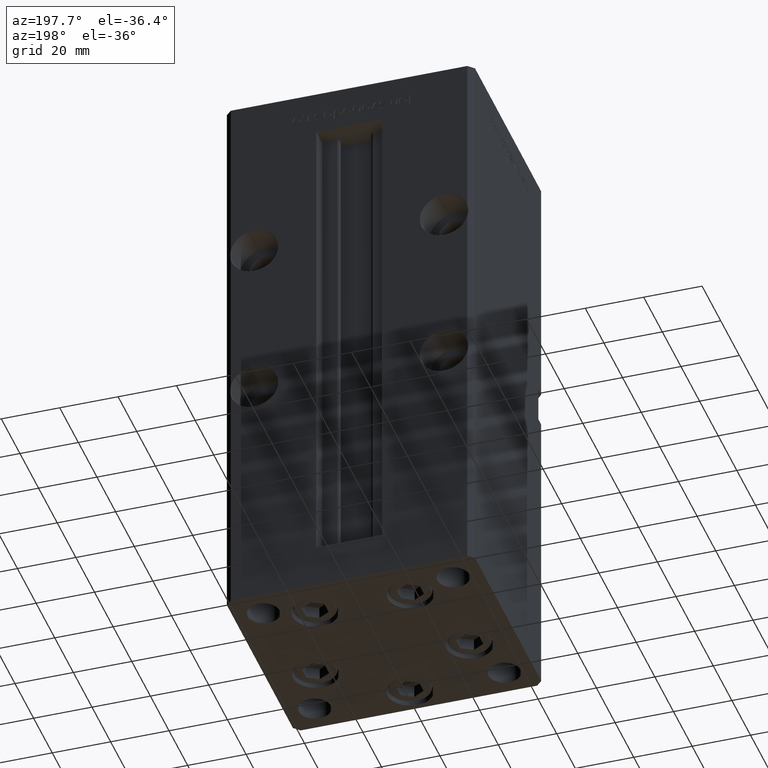
[diagram: clean part render]
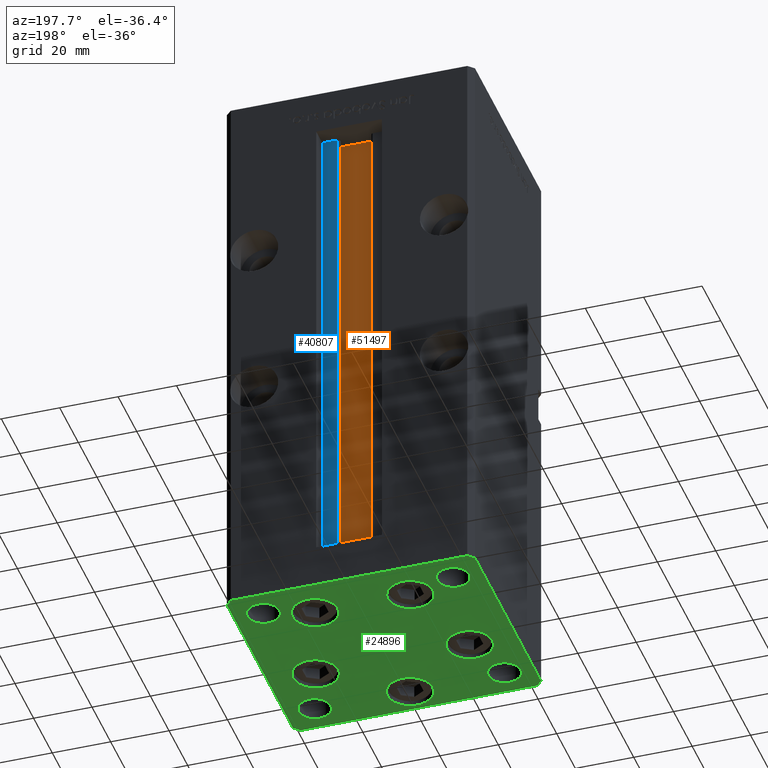
[diagram: same view with three faces highlighted in distinct colors, each labeled with its STEP entity id]
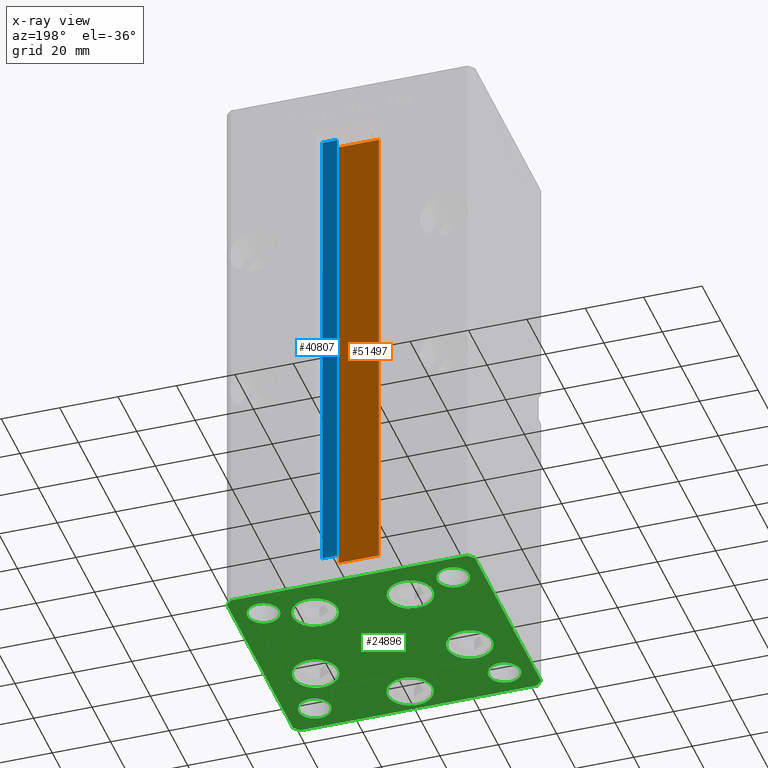
[diagram: x-ray of the same camera — body ghosted, the three highlighted faces saturated]
A machine part, auxiliary view with three faces highlighted in distinct colors.
The next image is the same camera in x-ray (body ghosted, the three faces saturated) — at least one of them is partly hidden behind the body in this view.
Their STEP definitions:

[orange] entity #51497 — the highlighted planar face has unit normal (0, -1, 0).
#182 = CARTESIAN_POINT ( 'NONE',  ( 6.876153656360465938, 26.99999999999986855, 0.000000000000000000 ) ) ;
#631 = CARTESIAN_POINT ( 'NONE',  ( 0.000000000000000000, 26.99999999999986855, 168.5000000000000000 ) ) ;
#884 = ORIENTED_EDGE ( 'NONE', *, *, #7718, .F. ) ;
#2461 = ORIENTED_EDGE ( 'NONE', *, *, #17048, .F. ) ;
#4749 = PLANE ( 'NONE',  #14520 ) ;
#5506 = VERTEX_POINT ( 'NONE', #25019 ) ;
#7424 = CARTESIAN_POINT ( 'NONE',  ( -6.876153656360465938, 26.99999999999986855, 168.5000000000000000 ) ) ;
#7718 = EDGE_CURVE ( 'NONE', #5506, #31413, #7901, .T. ) ;
#7901 = LINE ( 'NONE', #631, #20656 ) ;
#11794 = DIRECTION ( 'NONE',  ( 1.000000000000000000, -0.000000000000000000, -0.000000000000000000 ) ) ;
#14295 = VERTEX_POINT ( 'NONE', #39695 ) ;
#14520 = AXIS2_PLACEMENT_3D ( 'NONE', #182, #49946, #16868 ) ;
#16868 = DIRECTION ( 'NONE',  ( 0.000000000000000000, 0.000000000000000000, -1.000000000000000000 ) ) ;
#17048 = EDGE_CURVE ( 'NONE', #14295, #17902, #53203, .T. ) ;
#17902 = VERTEX_POINT ( 'NONE', #42909 ) ;
#18743 = EDGE_LOOP ( 'NONE', ( #38822, #2461, #27637, #884 ) ) ;
#19698 = LINE ( 'NONE', #52497, #20138 ) ;
#20138 = VECTOR ( 'NONE', #32029, 1000.000000000000000 ) ;
#20656 = VECTOR ( 'NONE', #40701, 1000.000000000000000 ) ;
#23348 = CARTESIAN_POINT ( 'NONE',  ( 6.876153656360465938, 26.99999999999986855, 0.000000000000000000 ) ) ;
#24482 = EDGE_CURVE ( 'NONE', #17902, #5506, #19698, .T. ) ;
#25019 = CARTESIAN_POINT ( 'NONE',  ( 6.876153656360465938, 26.99999999999986855, 168.5000000000000000 ) ) ;
#25367 = LINE ( 'NONE', #37458, #26193 ) ;
#26193 = VECTOR ( 'NONE', #33683, 1000.000000000000000 ) ;
#26906 = VECTOR ( 'NONE', #11794, 1000.000000000000000 ) ;
#27637 = ORIENTED_EDGE ( 'NONE', *, *, #36560, .T. ) ;
#31413 = VERTEX_POINT ( 'NONE', #7424 ) ;
#32029 = DIRECTION ( 'NONE',  ( -0.000000000000000000, -0.000000000000000000, 1.000000000000000000 ) ) ;
#33683 = DIRECTION ( 'NONE',  ( -0.000000000000000000, -0.000000000000000000, 1.000000000000000000 ) ) ;
#36560 = EDGE_CURVE ( 'NONE', #14295, #31413, #25367, .T. ) ;
#37458 = CARTESIAN_POINT ( 'NONE',  ( -6.876153656360465938, 26.99999999999986855, 0.000000000000000000 ) ) ;
#38073 = FACE_OUTER_BOUND ( 'NONE', #18743, .T. ) ;
#38822 = ORIENTED_EDGE ( 'NONE', *, *, #24482, .F. ) ;
#39695 = CARTESIAN_POINT ( 'NONE',  ( -6.876153656360465938, 26.99999999999986855, 0.000000000000000000 ) ) ;
#40701 = DIRECTION ( 'NONE',  ( -1.000000000000000000, 0.000000000000000000, 0.000000000000000000 ) ) ;
#42909 = CARTESIAN_POINT ( 'NONE',  ( 6.876153656360465938, 26.99999999999986855, 0.000000000000000000 ) ) ;
#49946 = DIRECTION ( 'NONE',  ( 0.000000000000000000, -1.000000000000000000, -0.000000000000000000 ) ) ;
#51497 = ADVANCED_FACE ( 'NONE', ( #38073 ), #4749, .F. ) ;
#52497 = CARTESIAN_POINT ( 'NONE',  ( 6.876153656360465938, 26.99999999999986855, 0.000000000000000000 ) ) ;
#53203 = LINE ( 'NONE', #23348, #26906 ) ;

[blue] entity #40807 — the highlighted planar face has unit normal (0, -1, 0).
#917 = CARTESIAN_POINT ( 'NONE',  ( 0.000000000000000000, 31.00000000000000000, 168.5000000000000000 ) ) ;
#1262 = CARTESIAN_POINT ( 'NONE',  ( 6.183333333333997928, 31.00000000000000000, 168.5000000000000000 ) ) ;
#3493 = DIRECTION ( 'NONE',  ( 1.000000000000000000, 0.000000000000000000, 0.000000000000000000 ) ) ;
#9618 = EDGE_CURVE ( 'NONE', #24494, #18319, #49876, .T. ) ;
#11840 = LINE ( 'NONE', #44624, #32237 ) ;
#13024 = DIRECTION ( 'NONE',  ( -1.000000000000000000, 0.000000000000000000, 0.000000000000000000 ) ) ;
#13321 = EDGE_LOOP ( 'NONE', ( #20841, #37438, #48474, #34015 ) ) ;
#14618 = VERTEX_POINT ( 'NONE', #36859 ) ;
#15853 = LINE ( 'NONE', #52968, #31324 ) ;
#16204 = PLANE ( 'NONE',  #22055 ) ;
#16666 = CARTESIAN_POINT ( 'NONE',  ( 11.24999999999999822, 31.00000000000000000, 0.000000000000000000 ) ) ;
#18319 = VERTEX_POINT ( 'NONE', #1262 ) ;
#19711 = DIRECTION ( 'NONE',  ( 0.000000000000000000, -0.000000000000000000, -1.000000000000000000 ) ) ;
#20841 = ORIENTED_EDGE ( 'NONE', *, *, #25595, .F. ) ;
#22055 = AXIS2_PLACEMENT_3D ( 'NONE', #23722, #49012, #19711 ) ;
#23605 = VECTOR ( 'NONE', #48947, 1000.000000000000000 ) ;
#23722 = CARTESIAN_POINT ( 'NONE',  ( 6.183333333333997928, 31.00000000000000000, 0.000000000000000000 ) ) ;
#24494 = VERTEX_POINT ( 'NONE', #48463 ) ;
#25595 = EDGE_CURVE ( 'NONE', #14618, #24494, #48680, .T. ) ;
#27211 = EDGE_CURVE ( 'NONE', #45643, #14618, #11840, .T. ) ;
#29207 = CARTESIAN_POINT ( 'NONE',  ( 6.183333333333997928, 31.00000000000000000, 0.000000000000000000 ) ) ;
#31324 = VECTOR ( 'NONE', #48668, 1000.000000000000000 ) ;
#32237 = VECTOR ( 'NONE', #3493, 1000.000000000000000 ) ;
#34015 = ORIENTED_EDGE ( 'NONE', *, *, #9618, .F. ) ;
#35113 = EDGE_CURVE ( 'NONE', #45643, #18319, #15853, .T. ) ;
#36859 = CARTESIAN_POINT ( 'NONE',  ( 11.24999999999999822, 31.00000000000000000, 0.000000000000000000 ) ) ;
#37438 = ORIENTED_EDGE ( 'NONE', *, *, #27211, .F. ) ;
#40807 = ADVANCED_FACE ( 'NONE', ( #48207 ), #16204, .F. ) ;
#41268 = VECTOR ( 'NONE', #13024, 1000.000000000000000 ) ;
#44624 = CARTESIAN_POINT ( 'NONE',  ( 6.183333333333997928, 31.00000000000000000, 0.000000000000000000 ) ) ;
#45643 = VERTEX_POINT ( 'NONE', #29207 ) ;
#48207 = FACE_OUTER_BOUND ( 'NONE', #13321, .T. ) ;
#48463 = CARTESIAN_POINT ( 'NONE',  ( 11.24999999999999822, 31.00000000000000000, 168.5000000000000000 ) ) ;
#48474 = ORIENTED_EDGE ( 'NONE', *, *, #35113, .T. ) ;
#48668 = DIRECTION ( 'NONE',  ( -0.000000000000000000, -0.000000000000000000, 1.000000000000000000 ) ) ;
#48680 = LINE ( 'NONE', #16666, #23605 ) ;
#48947 = DIRECTION ( 'NONE',  ( -0.000000000000000000, -0.000000000000000000, 1.000000000000000000 ) ) ;
#49012 = DIRECTION ( 'NONE',  ( 0.000000000000000000, -1.000000000000000000, 0.000000000000000000 ) ) ;
#49876 = LINE ( 'NONE', #917, #41268 ) ;
#52968 = CARTESIAN_POINT ( 'NONE',  ( 6.183333333333997928, 31.00000000000000000, 0.000000000000000000 ) ) ;

[green] entity #24896 — the highlighted planar face has unit normal (0, 0, -1).
#7 = CARTESIAN_POINT ( 'NONE',  ( -26.39865316429776954, -9.333333333333337478, 0.000000000000000000 ) ) ;
#224 = DIRECTION ( 'NONE',  ( 0.000000000000000000, -0.000000000000000000, -1.000000000000000000 ) ) ;
#317 = AXIS2_PLACEMENT_3D ( 'NONE', #47971, #48511, #2782 ) ;
#513 = AXIS2_PLACEMENT_3D ( 'NONE', #23710, #24982, #27739 ) ;
#876 = VECTOR ( 'NONE', #45246, 1000.000000000000000 ) ;
#1205 = CIRCLE ( 'NONE', #47615, 7.750000000000000000 ) ;
#1254 = EDGE_LOOP ( 'NONE', ( #21331, #5039 ) ) ;
#1407 = CIRCLE ( 'NONE', #49474, 7.750000000000000000 ) ;
#1438 = DIRECTION ( 'NONE',  ( 1.000000000000000000, 0.000000000000000000, 0.000000000000000000 ) ) ;
#1537 = AXIS2_PLACEMENT_3D ( 'NONE', #31857, #50538, #22537 ) ;
#1775 = EDGE_LOOP ( 'NONE', ( #51240, #50155 ) ) ;
#2020 = DIRECTION ( 'NONE',  ( 1.000000000000000000, 0.000000000000000000, 0.000000000000000000 ) ) ;
#2297 = FACE_BOUND ( 'NONE', #19265, .T. ) ;
#2318 = DIRECTION ( 'NONE',  ( -0.000000000000000000, 0.000000000000000000, 1.000000000000000000 ) ) ;
#2782 = DIRECTION ( 'NONE',  ( 1.000000000000000000, 0.000000000000000000, 0.000000000000000000 ) ) ;
#2970 = DIRECTION ( 'NONE',  ( 0.000000000000000000, -0.000000000000000000, -1.000000000000000000 ) ) ;
#3086 = DIRECTION ( 'NONE',  ( -0.000000000000000000, 0.000000000000000000, 1.000000000000000000 ) ) ;
#3422 = CARTESIAN_POINT ( 'NONE',  ( 42.49999999999992895, 35.50000000000000000, 0.000000000000000000 ) ) ;
#3723 = EDGE_CURVE ( 'NONE', #51834, #33833, #22366, .T. ) ;
#3775 = DIRECTION ( 'NONE',  ( 0.000000000000000000, -0.000000000000000000, -1.000000000000000000 ) ) ;
#3984 = EDGE_CURVE ( 'NONE', #23499, #52232, #11385, .T. ) ;
#4340 = LINE ( 'NONE', #25312, #51108 ) ;
#4469 = CARTESIAN_POINT ( 'NONE',  ( -27.00000000000000355, 27.50000000000000355, 0.000000000000000000 ) ) ;
#4714 = VERTEX_POINT ( 'NONE', #16163 ) ;
#5039 = ORIENTED_EDGE ( 'NONE', *, *, #23215, .T. ) ;
#5268 = CARTESIAN_POINT ( 'NONE',  ( 16.32291334290542295, 22.75000000000000000, 0.000000000000000000 ) ) ;
#5696 = ORIENTED_EDGE ( 'NONE', *, *, #8816, .F. ) ;
#5792 = CARTESIAN_POINT ( 'NONE',  ( -40.50000000000000711, 37.49999999999997868, 0.000000000000000000 ) ) ;
#5814 = CARTESIAN_POINT ( 'NONE',  ( -32.50000000000000000, 27.50000000000000355, 0.000000000000000000 ) ) ;
#5827 = CIRCLE ( 'NONE', #38465, 5.499999999999998224 ) ;
#6052 = CARTESIAN_POINT ( 'NONE',  ( 26.39865316429776954, -9.333333333333330373, 0.000000000000000000 ) ) ;
#6750 = DIRECTION ( 'NONE',  ( 0.000000000000000000, -0.000000000000000000, -1.000000000000000000 ) ) ;
#6810 = CARTESIAN_POINT ( 'NONE',  ( 38.00000000000000000, -27.49999999999999645, 0.000000000000000000 ) ) ;
#7184 = CARTESIAN_POINT ( 'NONE',  ( 40.50000000000000000, -37.50000000000000711, 0.000000000000000000 ) ) ;
#7387 = CARTESIAN_POINT ( 'NONE',  ( 0.000000000000000000, 0.000000000000000000, 0.000000000000000000 ) ) ;
#7514 = CIRCLE ( 'NONE', #32412, 5.499999999999998224 ) ;
#7777 = LINE ( 'NONE', #24181, #16726 ) ;
#7902 = ORIENTED_EDGE ( 'NONE', *, *, #10834, .T. ) ;
#8139 = CARTESIAN_POINT ( 'NONE',  ( 42.50000000000000711, -35.50000000000000000, 0.000000000000000000 ) ) ;
#8555 = ORIENTED_EDGE ( 'NONE', *, *, #3984, .T. ) ;
#8663 = DIRECTION ( 'NONE',  ( 1.000000000000000000, 0.000000000000000000, 0.000000000000000000 ) ) ;
#8816 = EDGE_CURVE ( 'NONE', #25655, #4714, #42963, .T. ) ;
#8995 = ORIENTED_EDGE ( 'NONE', *, *, #50735, .T. ) ;
#9011 = CIRCLE ( 'NONE', #19299, 5.499999999999998224 ) ;
#9069 = CARTESIAN_POINT ( 'NONE',  ( -38.00000000000000000, -27.49999999999999645, 0.000000000000000000 ) ) ;
#9249 = DIRECTION ( 'NONE',  ( -0.000000000000000000, 0.000000000000000000, 1.000000000000000000 ) ) ;
#9323 = CARTESIAN_POINT ( 'NONE',  ( 40.49999999999991473, 37.50000000000000711, 0.000000000000000000 ) ) ;
#9716 = DIRECTION ( 'NONE',  ( 1.000000000000000000, 0.000000000000000000, 0.000000000000000000 ) ) ;
#10373 = DIRECTION ( 'NONE',  ( 1.000000000000000000, 0.000000000000000000, 0.000000000000000000 ) ) ;
#10382 = FACE_BOUND ( 'NONE', #1254, .T. ) ;
#10538 = CARTESIAN_POINT ( 'NONE',  ( -26.39865316429776954, -9.333333333333337478, 0.000000000000000000 ) ) ;
#10834 = EDGE_CURVE ( 'NONE', #17963, #19422, #34154, .T. ) ;
#11073 = EDGE_CURVE ( 'NONE', #24691, #33400, #48922, .T. ) ;
#11385 = LINE ( 'NONE', #8139, #876 ) ;
#11499 = LINE ( 'NONE', #3422, #35623 ) ;
#11596 = CARTESIAN_POINT ( 'NONE',  ( -40.50000000000000711, 37.49999999999997868, 0.000000000000000000 ) ) ;
#11924 = ORIENTED_EDGE ( 'NONE', *, *, #35646, .T. ) ;
#13612 = EDGE_LOOP ( 'NONE', ( #39667, #29142 ) ) ;
#13750 = CARTESIAN_POINT ( 'NONE',  ( -32.50000000000000000, 27.50000000000000355, 0.000000000000000000 ) ) ;
#14110 = CIRCLE ( 'NONE', #47572, 7.750000000000000000 ) ;
#14149 = FACE_BOUND ( 'NONE', #1775, .T. ) ;
#14163 = DIRECTION ( 'NONE',  ( 0.000000000000000000, -0.000000000000000000, -1.000000000000000000 ) ) ;
#14365 = ORIENTED_EDGE ( 'NONE', *, *, #26114, .T. ) ;
#14386 = ORIENTED_EDGE ( 'NONE', *, *, #11073, .T. ) ;
#14410 = FACE_BOUND ( 'NONE', #37553, .T. ) ;
#14728 = EDGE_LOOP ( 'NONE', ( #5696, #48435 ) ) ;
#15152 = VERTEX_POINT ( 'NONE', #16848 ) ;
#15351 = VERTEX_POINT ( 'NONE', #52587 ) ;
#15460 = PLANE ( 'NONE',  #23561 ) ;
#15727 = DIRECTION ( 'NONE',  ( 1.000000000000000000, 0.000000000000000000, 0.000000000000000000 ) ) ;
#15905 = CIRCLE ( 'NONE', #47648, 7.750000000000003553 ) ;
#16120 = CARTESIAN_POINT ( 'NONE',  ( -16.32291334290543006, 22.74999999999999645, 0.000000000000000000 ) ) ;
#16163 = CARTESIAN_POINT ( 'NONE',  ( 27.00000000000000355, 27.49999999999999645, 0.000000000000000000 ) ) ;
#16293 = CARTESIAN_POINT ( 'NONE',  ( -40.49999999999999289, -37.50000000000002132, 0.000000000000000000 ) ) ;
#16421 = EDGE_CURVE ( 'NONE', #45654, #48570, #44920, .T. ) ;
#16684 = EDGE_CURVE ( 'NONE', #46196, #15152, #23457, .T. ) ;
#16726 = VECTOR ( 'NONE', #40574, 1000.000000000000000 ) ;
#16803 = CARTESIAN_POINT ( 'NONE',  ( 8.572913342905422951, 22.75000000000000000, 0.000000000000000000 ) ) ;
#16848 = CARTESIAN_POINT ( 'NONE',  ( -18.64865316429776954, -9.333333333333335702, 0.000000000000000000 ) ) ;
#16943 = CARTESIAN_POINT ( 'NONE',  ( -42.50000000000000000, -35.50000000000000711, 0.000000000000000000 ) ) ;
#17532 = CIRCLE ( 'NONE', #24383, 7.750000000000000000 ) ;
#17623 = EDGE_CURVE ( 'NONE', #4714, #25655, #47536, .T. ) ;
#17652 = VERTEX_POINT ( 'NONE', #27250 ) ;
#17663 = DIRECTION ( 'NONE',  ( 1.000000000000000000, 0.000000000000000000, 0.000000000000000000 ) ) ;
#17735 = CARTESIAN_POINT ( 'NONE',  ( 38.00000000000000000, 27.49999999999999645, 0.000000000000000000 ) ) ;
#17855 = CARTESIAN_POINT ( 'NONE',  ( 32.50000000000000000, 27.49999999999999645, 0.000000000000000000 ) ) ;
#17963 = VERTEX_POINT ( 'NONE', #16943 ) ;
#18204 = CARTESIAN_POINT ( 'NONE',  ( 16.32291334290542295, 22.75000000000000000, 0.000000000000000000 ) ) ;
#18466 = VERTEX_POINT ( 'NONE', #6810 ) ;
#18620 = EDGE_CURVE ( 'NONE', #17652, #50471, #1205, .T. ) ;
#18717 = FACE_BOUND ( 'NONE', #14728, .T. ) ;
#18851 = LINE ( 'NONE', #43823, #22265 ) ;
#18897 = EDGE_CURVE ( 'NONE', #48011, #39681, #14110, .T. ) ;
#19265 = EDGE_LOOP ( 'NONE', ( #21121, #8995 ) ) ;
#19299 = AXIS2_PLACEMENT_3D ( 'NONE', #46144, #25695, #10373 ) ;
#19422 = VERTEX_POINT ( 'NONE', #16293 ) ;
#19673 = LINE ( 'NONE', #11596, #20103 ) ;
#19685 = ORIENTED_EDGE ( 'NONE', *, *, #48487, .T. ) ;
#20103 = VECTOR ( 'NONE', #44384, 1000.000000000000000 ) ;
#20116 = EDGE_LOOP ( 'NONE', ( #7902, #46394, #14365, #8555, #34177, #14386, #42317, #32735 ) ) ;
#20475 = DIRECTION ( 'NONE',  ( 0.000000000000000000, -0.000000000000000000, -1.000000000000000000 ) ) ;
#21121 = ORIENTED_EDGE ( 'NONE', *, *, #18897, .T. ) ;
#21331 = ORIENTED_EDGE ( 'NONE', *, *, #16684, .T. ) ;
#21687 = DIRECTION ( 'NONE',  ( 0.000000000000000000, -0.000000000000000000, -1.000000000000000000 ) ) ;
#22105 = DIRECTION ( 'NONE',  ( 0.000000000000000000, -0.000000000000000000, -1.000000000000000000 ) ) ;
#22257 = VERTEX_POINT ( 'NONE', #31196 ) ;
#22265 = VECTOR ( 'NONE', #51644, 1000.000000000000000 ) ;
#22366 = CIRCLE ( 'NONE', #52425, 7.750000000000003553 ) ;
#22537 = DIRECTION ( 'NONE',  ( 1.000000000000000000, 0.000000000000000000, 0.000000000000000000 ) ) ;
#23196 = EDGE_CURVE ( 'NONE', #33400, #32704, #19673, .T. ) ;
#23215 = EDGE_CURVE ( 'NONE', #15152, #46196, #17532, .T. ) ;
#23308 = EDGE_LOOP ( 'NONE', ( #47636, #38818 ) ) ;
#23457 = CIRCLE ( 'NONE', #42345, 7.750000000000000000 ) ;
#23499 = VERTEX_POINT ( 'NONE', #46009 ) ;
#23561 = AXIS2_PLACEMENT_3D ( 'NONE', #7387, #3086, #15727 ) ;
#23573 = CIRCLE ( 'NONE', #27028, 7.750000000000000000 ) ;
#23692 = CIRCLE ( 'NONE', #513, 5.499999999999998224 ) ;
#23710 = CARTESIAN_POINT ( 'NONE',  ( -32.50000000000000000, -27.49999999999999645, 0.000000000000000000 ) ) ;
#23894 = ORIENTED_EDGE ( 'NONE', *, *, #26374, .T. ) ;
#24181 = CARTESIAN_POINT ( 'NONE',  ( -42.50000000000000711, 35.49999999999997158, 0.000000000000000000 ) ) ;
#24383 = AXIS2_PLACEMENT_3D ( 'NONE', #10538, #6750, #31733 ) ;
#24657 = VERTEX_POINT ( 'NONE', #7184 ) ;
#24691 = VERTEX_POINT ( 'NONE', #9323 ) ;
#24728 = CIRCLE ( 'NONE', #1537, 7.750000000000000000 ) ;
#24896 = ADVANCED_FACE ( 'NONE', ( #14410, #31049, #30269, #2297, #10382, #18717, #47475, #14149, #34303, #46951 ), #15460, .T. ) ;
#24982 = DIRECTION ( 'NONE',  ( 0.000000000000000000, -0.000000000000000000, -1.000000000000000000 ) ) ;
#25312 = CARTESIAN_POINT ( 'NONE',  ( 40.50000000000000000, -37.50000000000000711, 0.000000000000000000 ) ) ;
#25655 = VERTEX_POINT ( 'NONE', #17735 ) ;
#25695 = DIRECTION ( 'NONE',  ( 0.000000000000000000, -0.000000000000000000, -1.000000000000000000 ) ) ;
#25850 = VECTOR ( 'NONE', #42750, 1000.000000000000000 ) ;
#26114 = EDGE_CURVE ( 'NONE', #24657, #23499, #4340, .T. ) ;
#26156 = CARTESIAN_POINT ( 'NONE',  ( -8.572913342905431833, 22.74999999999999645, 0.000000000000000000 ) ) ;
#26374 = EDGE_CURVE ( 'NONE', #33833, #51834, #15905, .T. ) ;
#26510 = DIRECTION ( 'NONE',  ( 1.000000000000000000, 0.000000000000000000, 0.000000000000000000 ) ) ;
#27028 = AXIS2_PLACEMENT_3D ( 'NONE', #6052, #38857, #2020 ) ;
#27250 = CARTESIAN_POINT ( 'NONE',  ( 34.14865316429776954, -9.333333333333328596, 0.000000000000000000 ) ) ;
#27739 = DIRECTION ( 'NONE',  ( 1.000000000000000000, 0.000000000000000000, 0.000000000000000000 ) ) ;
#28464 = CARTESIAN_POINT ( 'NONE',  ( 40.49999999999991473, 37.50000000000000711, 0.000000000000000000 ) ) ;
#29041 = CARTESIAN_POINT ( 'NONE',  ( 3.429011037612589276E-15, -28.00000000000000000, 0.000000000000000000 ) ) ;
#29074 = DIRECTION ( 'NONE',  ( 0.7071067811865474617, 0.7071067811865474617, 0.000000000000000000 ) ) ;
#29089 = DIRECTION ( 'NONE',  ( 0.000000000000000000, -0.000000000000000000, -1.000000000000000000 ) ) ;
#29142 = ORIENTED_EDGE ( 'NONE', *, *, #30013, .T. ) ;
#29633 = DIRECTION ( 'NONE',  ( 1.000000000000000000, 0.000000000000000000, 0.000000000000000000 ) ) ;
#29916 = CARTESIAN_POINT ( 'NONE',  ( 24.07291334290542650, 22.75000000000000000, 0.000000000000000000 ) ) ;
#29943 = CIRCLE ( 'NONE', #50576, 5.499999999999998224 ) ;
#30013 = EDGE_CURVE ( 'NONE', #42859, #18466, #7514, .T. ) ;
#30269 = FACE_BOUND ( 'NONE', #42605, .T. ) ;
#30723 = DIRECTION ( 'NONE',  ( 0.000000000000000000, -0.000000000000000000, -1.000000000000000000 ) ) ;
#31049 = FACE_BOUND ( 'NONE', #40066, .T. ) ;
#31196 = CARTESIAN_POINT ( 'NONE',  ( -24.07291334290543006, 22.74999999999999645, 0.000000000000000000 ) ) ;
#31652 = CIRCLE ( 'NONE', #35071, 7.750000000000000000 ) ;
#31733 = DIRECTION ( 'NONE',  ( 1.000000000000000000, 0.000000000000000000, 0.000000000000000000 ) ) ;
#31857 = CARTESIAN_POINT ( 'NONE',  ( -16.32291334290543006, 22.74999999999999645, 0.000000000000000000 ) ) ;
#32179 = DIRECTION ( 'NONE',  ( -0.7071067811865474617, 0.7071067811865474617, 0.000000000000000000 ) ) ;
#32412 = AXIS2_PLACEMENT_3D ( 'NONE', #41185, #29089, #8663 ) ;
#32497 = DIRECTION ( 'NONE',  ( 1.000000000000000000, 0.000000000000000000, 0.000000000000000000 ) ) ;
#32704 = VERTEX_POINT ( 'NONE', #44473 ) ;
#32735 = ORIENTED_EDGE ( 'NONE', *, *, #35148, .T. ) ;
#33400 = VERTEX_POINT ( 'NONE', #5792 ) ;
#33833 = VERTEX_POINT ( 'NONE', #29916 ) ;
#33926 = CARTESIAN_POINT ( 'NONE',  ( 26.39865316429776954, -9.333333333333330373, 0.000000000000000000 ) ) ;
#33929 = ORIENTED_EDGE ( 'NONE', *, *, #18620, .T. ) ;
#34154 = LINE ( 'NONE', #50050, #25850 ) ;
#34177 = ORIENTED_EDGE ( 'NONE', *, *, #36436, .T. ) ;
#34303 = FACE_OUTER_BOUND ( 'NONE', #20116, .T. ) ;
#34344 = DIRECTION ( 'NONE',  ( -1.000000000000000000, -3.426614273534436165E-16, 0.000000000000000000 ) ) ;
#34884 = CARTESIAN_POINT ( 'NONE',  ( 18.64865316429776954, -9.333333333333330373, 0.000000000000000000 ) ) ;
#35071 = AXIS2_PLACEMENT_3D ( 'NONE', #35810, #30723, #43875 ) ;
#35148 = EDGE_CURVE ( 'NONE', #32704, #17963, #7777, .T. ) ;
#35507 = EDGE_CURVE ( 'NONE', #49628, #15351, #9011, .T. ) ;
#35623 = VECTOR ( 'NONE', #32179, 1000.000000000000114 ) ;
#35646 = EDGE_CURVE ( 'NONE', #50471, #17652, #23573, .T. ) ;
#35810 = CARTESIAN_POINT ( 'NONE',  ( 3.429011037612589276E-15, -28.00000000000000000, 0.000000000000000000 ) ) ;
#35867 = CARTESIAN_POINT ( 'NONE',  ( 7.750000000000003553, -28.00000000000000000, 0.000000000000000000 ) ) ;
#36436 = EDGE_CURVE ( 'NONE', #52232, #24691, #11499, .T. ) ;
#37553 = EDGE_LOOP ( 'NONE', ( #49973, #19685 ) ) ;
#37882 = CARTESIAN_POINT ( 'NONE',  ( 42.49999999999992895, 35.50000000000000000, 0.000000000000000000 ) ) ;
#37916 = CARTESIAN_POINT ( 'NONE',  ( 27.00000000000000355, -27.49999999999999645, 0.000000000000000000 ) ) ;
#38037 = AXIS2_PLACEMENT_3D ( 'NONE', #5814, #2318, #51270 ) ;
#38465 = AXIS2_PLACEMENT_3D ( 'NONE', #44097, #2970, #40070 ) ;
#38818 = ORIENTED_EDGE ( 'NONE', *, *, #35507, .T. ) ;
#38857 = DIRECTION ( 'NONE',  ( 0.000000000000000000, -0.000000000000000000, -1.000000000000000000 ) ) ;
#39066 = CARTESIAN_POINT ( 'NONE',  ( -34.14865316429776954, -9.333333333333337478, 0.000000000000000000 ) ) ;
#39342 = EDGE_CURVE ( 'NONE', #22257, #39816, #1407, .T. ) ;
#39543 = AXIS2_PLACEMENT_3D ( 'NONE', #17855, #9249, #1438 ) ;
#39667 = ORIENTED_EDGE ( 'NONE', *, *, #49200, .T. ) ;
#39681 = VERTEX_POINT ( 'NONE', #35867 ) ;
#39816 = VERTEX_POINT ( 'NONE', #26156 ) ;
#39902 = EDGE_CURVE ( 'NONE', #15351, #49628, #23692, .T. ) ;
#40066 = EDGE_LOOP ( 'NONE', ( #51653, #23894 ) ) ;
#40070 = DIRECTION ( 'NONE',  ( 1.000000000000000000, 0.000000000000000000, 0.000000000000000000 ) ) ;
#40574 = DIRECTION ( 'NONE',  ( 9.773090005503140331E-17, -1.000000000000000000, 0.000000000000000000 ) ) ;
#41185 = CARTESIAN_POINT ( 'NONE',  ( 32.50000000000000000, -27.49999999999999645, 0.000000000000000000 ) ) ;
#41255 = CARTESIAN_POINT ( 'NONE',  ( -38.00000000000000000, 27.50000000000000355, 0.000000000000000000 ) ) ;
#42317 = ORIENTED_EDGE ( 'NONE', *, *, #23196, .T. ) ;
#42345 = AXIS2_PLACEMENT_3D ( 'NONE', #7, #20475, #44648 ) ;
#42605 = EDGE_LOOP ( 'NONE', ( #11924, #33929 ) ) ;
#42750 = DIRECTION ( 'NONE',  ( 0.7071067811865463515, -0.7071067811865487940, 0.000000000000000000 ) ) ;
#42859 = VERTEX_POINT ( 'NONE', #37916 ) ;
#42963 = CIRCLE ( 'NONE', #39543, 5.499999999999998224 ) ;
#43823 = CARTESIAN_POINT ( 'NONE',  ( -40.49999999999999289, -37.50000000000002132, 0.000000000000000000 ) ) ;
#43875 = DIRECTION ( 'NONE',  ( 1.000000000000000000, 0.000000000000000000, 0.000000000000000000 ) ) ;
#44097 = CARTESIAN_POINT ( 'NONE',  ( 32.50000000000000000, -27.49999999999999645, 0.000000000000000000 ) ) ;
#44384 = DIRECTION ( 'NONE',  ( -0.7071067811865463515, -0.7071067811865487940, 0.000000000000000000 ) ) ;
#44473 = CARTESIAN_POINT ( 'NONE',  ( -42.50000000000000711, 35.49999999999997158, 0.000000000000000000 ) ) ;
#44648 = DIRECTION ( 'NONE',  ( 1.000000000000000000, 0.000000000000000000, 0.000000000000000000 ) ) ;
#44912 = DIRECTION ( 'NONE',  ( 1.000000000000000000, 0.000000000000000000, 0.000000000000000000 ) ) ;
#44920 = CIRCLE ( 'NONE', #38037, 5.499999999999998224 ) ;
#45246 = DIRECTION ( 'NONE',  ( -1.172770800660376741E-15, 1.000000000000000000, 0.000000000000000000 ) ) ;
#45654 = VERTEX_POINT ( 'NONE', #4469 ) ;
#45752 = DIRECTION ( 'NONE',  ( -0.000000000000000000, 0.000000000000000000, 1.000000000000000000 ) ) ;
#46009 = CARTESIAN_POINT ( 'NONE',  ( 42.50000000000000711, -35.50000000000000000, 0.000000000000000000 ) ) ;
#46033 = CARTESIAN_POINT ( 'NONE',  ( -7.749999999999996447, -28.00000000000000000, 0.000000000000000000 ) ) ;
#46144 = CARTESIAN_POINT ( 'NONE',  ( -32.50000000000000000, -27.49999999999999645, 0.000000000000000000 ) ) ;
#46196 = VERTEX_POINT ( 'NONE', #39066 ) ;
#46394 = ORIENTED_EDGE ( 'NONE', *, *, #51994, .T. ) ;
#46951 = FACE_BOUND ( 'NONE', #23308, .T. ) ;
#47475 = FACE_BOUND ( 'NONE', #13612, .T. ) ;
#47536 = CIRCLE ( 'NONE', #317, 5.499999999999998224 ) ;
#47572 = AXIS2_PLACEMENT_3D ( 'NONE', #29041, #3775, #44912 ) ;
#47615 = AXIS2_PLACEMENT_3D ( 'NONE', #33926, #22105, #29633 ) ;
#47636 = ORIENTED_EDGE ( 'NONE', *, *, #39902, .T. ) ;
#47648 = AXIS2_PLACEMENT_3D ( 'NONE', #5268, #21687, #17663 ) ;
#47971 = CARTESIAN_POINT ( 'NONE',  ( 32.50000000000000000, 27.49999999999999645, 0.000000000000000000 ) ) ;
#48011 = VERTEX_POINT ( 'NONE', #46033 ) ;
#48238 = VECTOR ( 'NONE', #34344, 1000.000000000000000 ) ;
#48435 = ORIENTED_EDGE ( 'NONE', *, *, #17623, .F. ) ;
#48487 = EDGE_CURVE ( 'NONE', #39816, #22257, #24728, .T. ) ;
#48511 = DIRECTION ( 'NONE',  ( -0.000000000000000000, 0.000000000000000000, 1.000000000000000000 ) ) ;
#48570 = VERTEX_POINT ( 'NONE', #41255 ) ;
#48922 = LINE ( 'NONE', #28464, #48238 ) ;
#49200 = EDGE_CURVE ( 'NONE', #18466, #42859, #5827, .T. ) ;
#49474 = AXIS2_PLACEMENT_3D ( 'NONE', #16120, #224, #32497 ) ;
#49628 = VERTEX_POINT ( 'NONE', #9069 ) ;
#49973 = ORIENTED_EDGE ( 'NONE', *, *, #39342, .T. ) ;
#50050 = CARTESIAN_POINT ( 'NONE',  ( -42.50000000000000000, -35.50000000000000711, 0.000000000000000000 ) ) ;
#50155 = ORIENTED_EDGE ( 'NONE', *, *, #50959, .F. ) ;
#50471 = VERTEX_POINT ( 'NONE', #34884 ) ;
#50538 = DIRECTION ( 'NONE',  ( 0.000000000000000000, -0.000000000000000000, -1.000000000000000000 ) ) ;
#50576 = AXIS2_PLACEMENT_3D ( 'NONE', #13750, #45752, #9716 ) ;
#50735 = EDGE_CURVE ( 'NONE', #39681, #48011, #31652, .T. ) ;
#50959 = EDGE_CURVE ( 'NONE', #48570, #45654, #29943, .T. ) ;
#51108 = VECTOR ( 'NONE', #29074, 1000.000000000000114 ) ;
#51240 = ORIENTED_EDGE ( 'NONE', *, *, #16421, .F. ) ;
#51270 = DIRECTION ( 'NONE',  ( 1.000000000000000000, 0.000000000000000000, 0.000000000000000000 ) ) ;
#51644 = DIRECTION ( 'NONE',  ( 1.000000000000000000, 1.713307136767217096E-16, 0.000000000000000000 ) ) ;
#51653 = ORIENTED_EDGE ( 'NONE', *, *, #3723, .T. ) ;
#51834 = VERTEX_POINT ( 'NONE', #16803 ) ;
#51994 = EDGE_CURVE ( 'NONE', #19422, #24657, #18851, .T. ) ;
#52232 = VERTEX_POINT ( 'NONE', #37882 ) ;
#52425 = AXIS2_PLACEMENT_3D ( 'NONE', #18204, #14163, #26510 ) ;
#52587 = CARTESIAN_POINT ( 'NONE',  ( -27.00000000000000355, -27.49999999999999645, 0.000000000000000000 ) ) ;